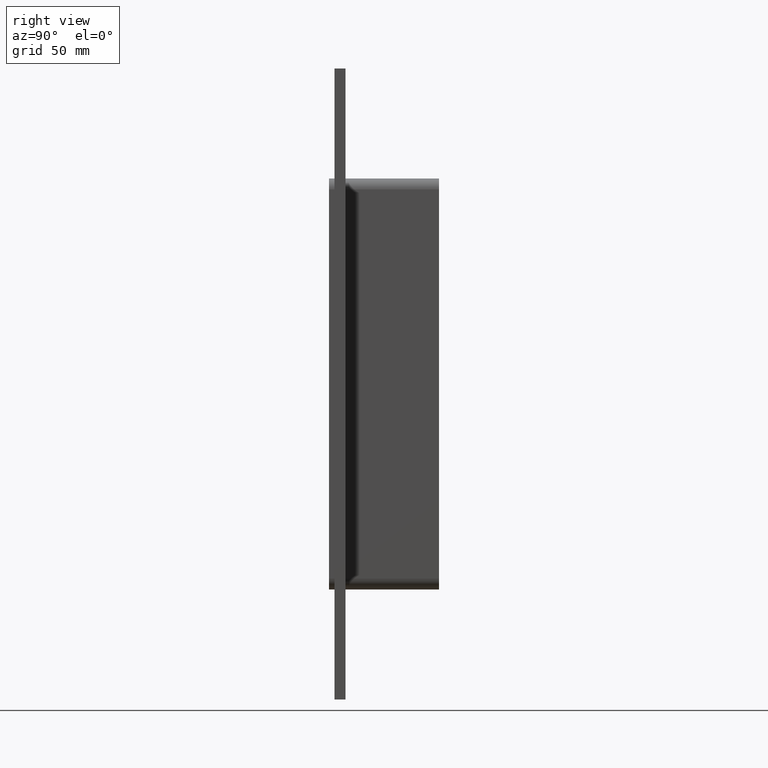
[diagram: clean part render]
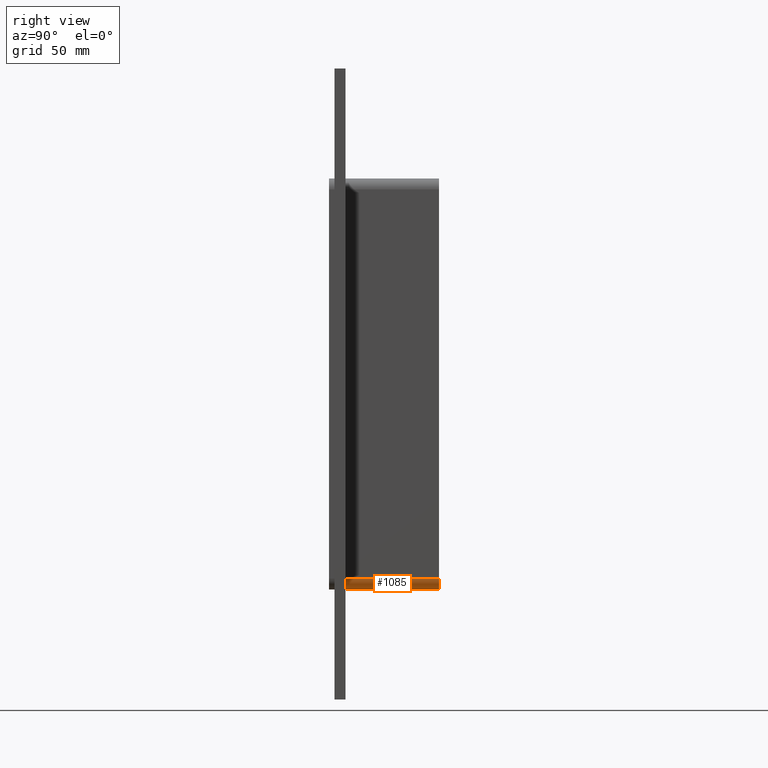
[diagram: same view with one face highlighted and labeled with its STEP entity id]
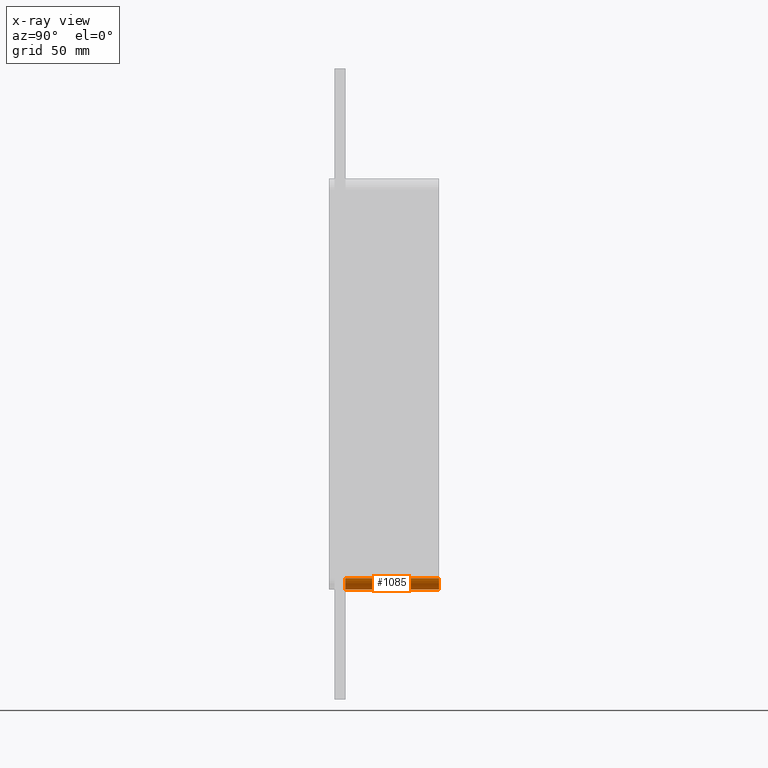
[diagram: x-ray of the same camera — body ghosted, the highlighted face saturated]
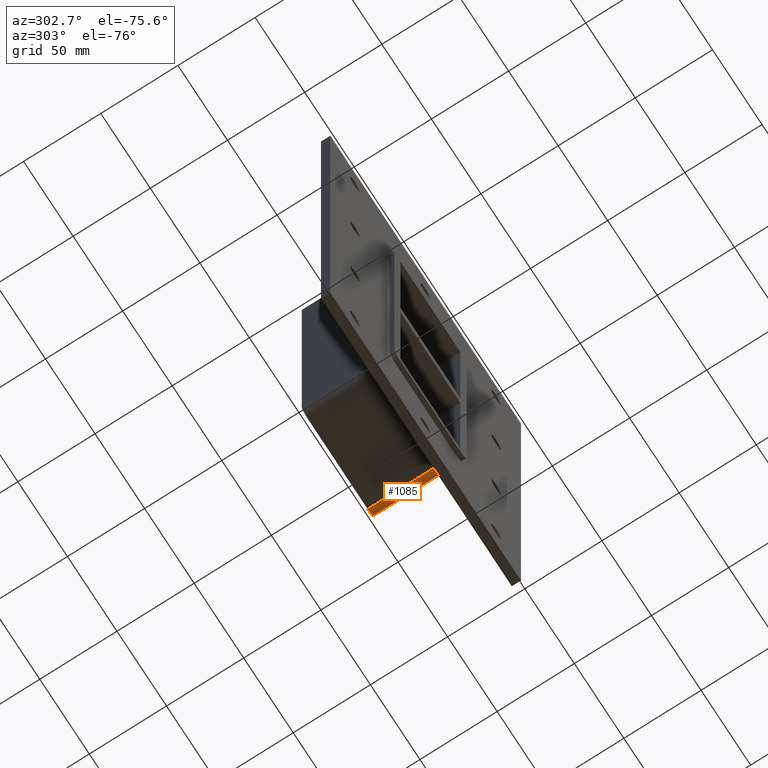
[diagram: same view with one face highlighted and labeled with its STEP entity id]
A machine part, right view. The second image highlights one B-rep face of the part: STEP entity #1085.
The next image is the same camera in x-ray: the body ghosted, the highlighted face saturated — about 0% of this face is hidden behind the body in this view.
A second angle (auxiliary view) of the same face is appended — the face is thin or edge-on in the first view.
In plain terms, the highlighted cylindrical surface (edge-blend (fillet) strip) has radius 6 mm, axis along (0, 1, 0).
Its self-contained STEP definition (entity closure, byte-faithful):
#601=CARTESIAN_POINT('',(30.250000000000004,6.000000000000001,-112.0));
#602=VERTEX_POINT('',#601);
#609=CARTESIAN_POINT('',(36.250000000000007,6.000000000000001,-106.00000000000001));
#610=VERTEX_POINT('',#609);
#611=CARTESIAN_POINT('',(30.250000000000004,6.000000000000001,-106.00000000000001));
#612=DIRECTION('',(0.0,1.0,0.0));
#613=DIRECTION('',(0.707106781186548,0.0,-0.707106781186547));
#614=AXIS2_PLACEMENT_3D('',#611,#612,#613);
#615=CIRCLE('',#614,6.0);
#616=EDGE_CURVE('',#610,#602,#615,.T.);
#994=CARTESIAN_POINT('',(36.250000000000007,57.0,-106.00000000000001));
#995=VERTEX_POINT('',#994);
#996=CARTESIAN_POINT('',(36.250000000000007,57.0,-106.00000000000001));
#997=DIRECTION('',(0.0,-1.0,0.0));
#998=VECTOR('',#997,51.0);
#999=LINE('',#996,#998);
#1000=EDGE_CURVE('',#995,#610,#999,.T.);
#1061=CARTESIAN_POINT('',(30.250000000000004,0.0,-106.00000000000001));
#1062=DIRECTION('',(0.0,1.0,0.0));
#1063=DIRECTION('',(0.707106781186548,0.0,-0.707106781186547));
#1064=AXIS2_PLACEMENT_3D('',#1061,#1062,#1063);
#1065=CYLINDRICAL_SURFACE('',#1064,6.0);
#1066=ORIENTED_EDGE('',*,*,#616,.T.);
#1067=CARTESIAN_POINT('',(30.250000000000004,57.0,-112.0));
#1068=VERTEX_POINT('',#1067);
#1069=CARTESIAN_POINT('',(30.250000000000004,6.000000000000001,-112.0));
#1070=DIRECTION('',(0.0,1.0,0.0));
#1071=VECTOR('',#1070,51.0);
#1072=LINE('',#1069,#1071);
#1073=EDGE_CURVE('',#602,#1068,#1072,.T.);
#1074=ORIENTED_EDGE('',*,*,#1073,.T.);
#1075=CARTESIAN_POINT('',(30.250000000000004,57.0,-106.00000000000001));
#1076=DIRECTION('',(0.0,-1.0,0.0));
#1077=DIRECTION('',(0.707106781186548,0.0,-0.707106781186547));
#1078=AXIS2_PLACEMENT_3D('',#1075,#1076,#1077);
#1079=CIRCLE('',#1078,6.0);
#1080=EDGE_CURVE('',#1068,#995,#1079,.T.);
#1081=ORIENTED_EDGE('',*,*,#1080,.T.);
#1082=ORIENTED_EDGE('',*,*,#1000,.T.);
#1083=EDGE_LOOP('',(#1066,#1074,#1081,#1082));
#1084=FACE_OUTER_BOUND('',#1083,.T.);
#1085=ADVANCED_FACE('',(#1084),#1065,.T.);